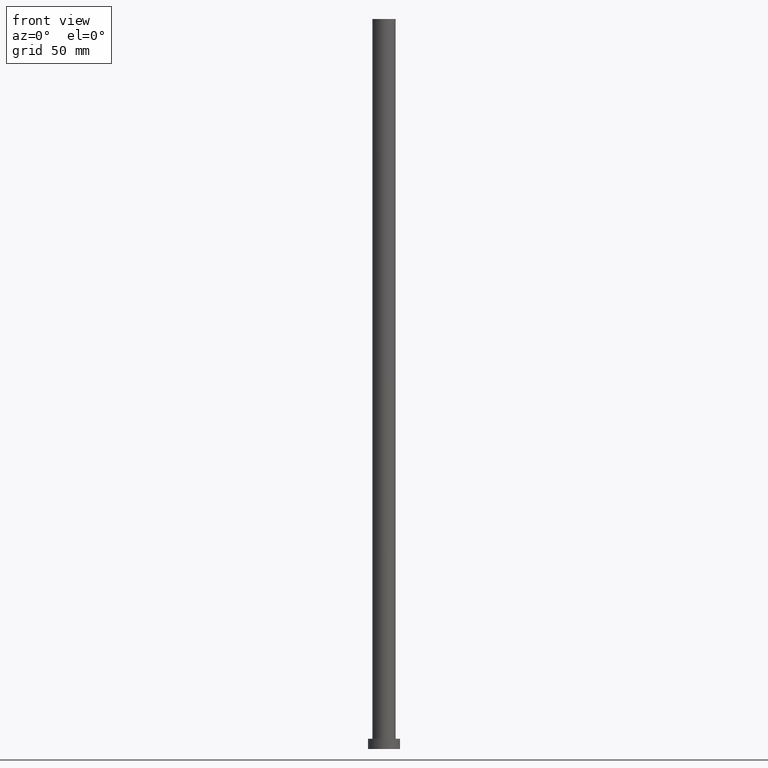
[diagram: clean part render]
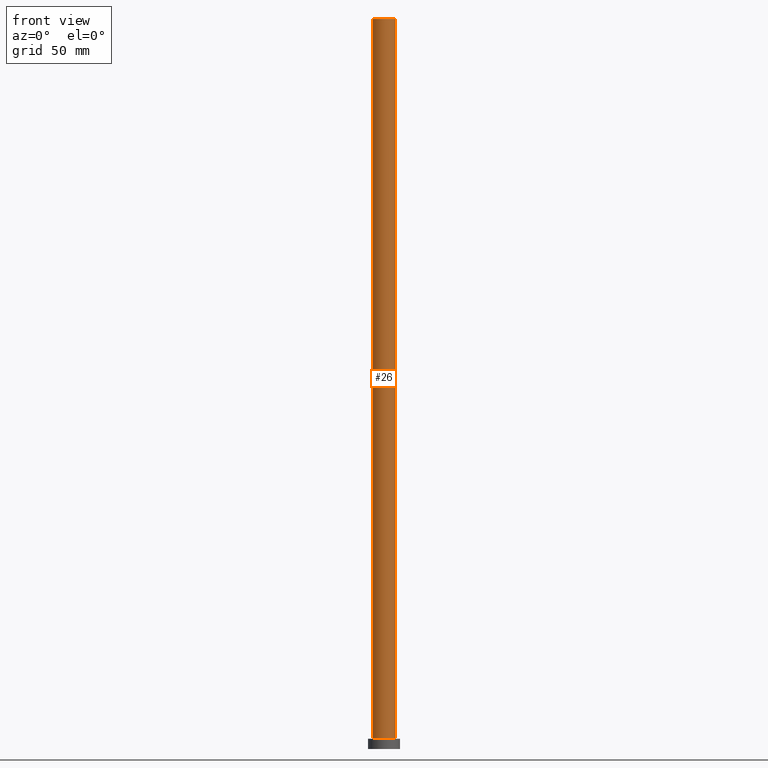
[diagram: same view with one face highlighted and labeled with its STEP entity id]
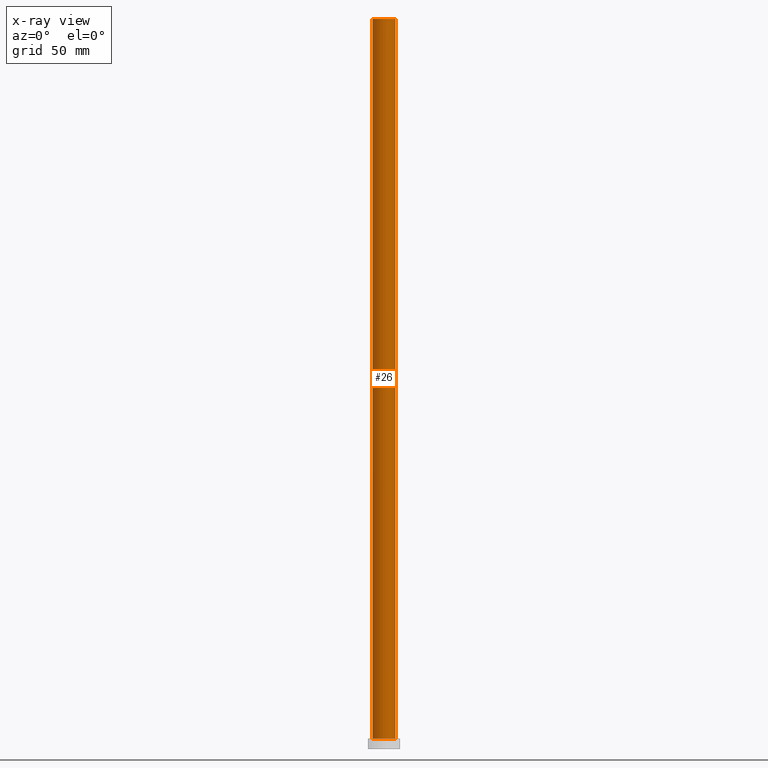
[diagram: x-ray of the same camera — body ghosted, the highlighted face saturated]
A machine part, front view. The second image highlights one B-rep face of the part: STEP entity #26.
The next image is the same camera in x-ray: the body ghosted, the highlighted face saturated — about 0% of this face is hidden behind the body in this view.
In plain terms, the highlighted cylindrical surface (edge-blend (fillet) strip) has radius 8 mm, axis along (-0, -0, -1).
Its self-contained STEP definition (entity closure, byte-faithful):
#8 = VERTEX_POINT ( 'NONE', #104 ) ;
#15 = ORIENTED_EDGE ( 'NONE', *, *, #219, .T. ) ;
#16 = DIRECTION ( 'NONE',  ( -0.000000000000000000, -0.000000000000000000, -1.000000000000000000 ) ) ;
#21 = CARTESIAN_POINT ( 'NONE',  ( -8.000000000000000000, 0.000000000000000000, 500.0000000000000000 ) ) ;
#22 = CARTESIAN_POINT ( 'NONE',  ( -8.000000000000000000, 0.000000000000000000, 7.000000000000000000 ) ) ;
#26 = ADVANCED_FACE ( 'NONE', ( #30 ), #92, .T. ) ;
#27 = VECTOR ( 'NONE', #38, 1000.000000000000000 ) ;
#30 = FACE_OUTER_BOUND ( 'NONE', #33, .T. ) ;
#33 = EDGE_LOOP ( 'NONE', ( #125, #69, #172, #15 ) ) ;
#38 = DIRECTION ( 'NONE',  ( -0.000000000000000000, -0.000000000000000000, -1.000000000000000000 ) ) ;
#40 = DIRECTION ( 'NONE',  ( 0.000000000000000000, 0.000000000000000000, 1.000000000000000000 ) ) ;
#47 = AXIS2_PLACEMENT_3D ( 'NONE', #191, #62, #249 ) ;
#49 = DIRECTION ( 'NONE',  ( -0.000000000000000000, -0.000000000000000000, -1.000000000000000000 ) ) ;
#50 = VERTEX_POINT ( 'NONE', #51 ) ;
#51 = CARTESIAN_POINT ( 'NONE',  ( 8.000000000000000000, 9.797174393178825657E-16, 7.000000000000000000 ) ) ;
#62 = DIRECTION ( 'NONE',  ( 0.000000000000000000, 0.000000000000000000, 1.000000000000000000 ) ) ;
#69 = ORIENTED_EDGE ( 'NONE', *, *, #193, .F. ) ;
#72 = AXIS2_PLACEMENT_3D ( 'NONE', #132, #40, #134 ) ;
#76 = VERTEX_POINT ( 'NONE', #22 ) ;
#80 = LINE ( 'NONE', #21, #205 ) ;
#92 = CYLINDRICAL_SURFACE ( 'NONE', #233, 8.000000000000000000 ) ;
#96 = CARTESIAN_POINT ( 'NONE',  ( 8.000000000000000000, 9.797174393178825657E-16, 500.0000000000000000 ) ) ;
#104 = CARTESIAN_POINT ( 'NONE',  ( -8.000000000000000000, 0.000000000000000000, 500.0000000000000000 ) ) ;
#117 = CARTESIAN_POINT ( 'NONE',  ( 8.000000000000000000, 9.797174393178825657E-16, 500.0000000000000000 ) ) ;
#125 = ORIENTED_EDGE ( 'NONE', *, *, #244, .F. ) ;
#126 = DIRECTION ( 'NONE',  ( -1.000000000000000000, 0.000000000000000000, 0.000000000000000000 ) ) ;
#132 = CARTESIAN_POINT ( 'NONE',  ( 0.000000000000000000, 0.000000000000000000, 7.000000000000000000 ) ) ;
#134 = DIRECTION ( 'NONE',  ( 1.000000000000000000, 0.000000000000000000, 0.000000000000000000 ) ) ;
#144 = VERTEX_POINT ( 'NONE', #96 ) ;
#172 = ORIENTED_EDGE ( 'NONE', *, *, #213, .T. ) ;
#191 = CARTESIAN_POINT ( 'NONE',  ( 0.000000000000000000, 0.000000000000000000, 500.0000000000000000 ) ) ;
#193 = EDGE_CURVE ( 'NONE', #8, #144, #217, .T. ) ;
#205 = VECTOR ( 'NONE', #16, 1000.000000000000000 ) ;
#211 = LINE ( 'NONE', #117, #27 ) ;
#213 = EDGE_CURVE ( 'NONE', #8, #76, #80, .T. ) ;
#217 = CIRCLE ( 'NONE', #47, 8.000000000000000000 ) ;
#219 = EDGE_CURVE ( 'NONE', #76, #50, #253, .T. ) ;
#225 = CARTESIAN_POINT ( 'NONE',  ( 0.000000000000000000, 0.000000000000000000, 500.0000000000000000 ) ) ;
#233 = AXIS2_PLACEMENT_3D ( 'NONE', #225, #49, #126 ) ;
#244 = EDGE_CURVE ( 'NONE', #144, #50, #211, .T. ) ;
#249 = DIRECTION ( 'NONE',  ( 1.000000000000000000, 0.000000000000000000, 0.000000000000000000 ) ) ;
#253 = CIRCLE ( 'NONE', #72, 8.000000000000000000 ) ;